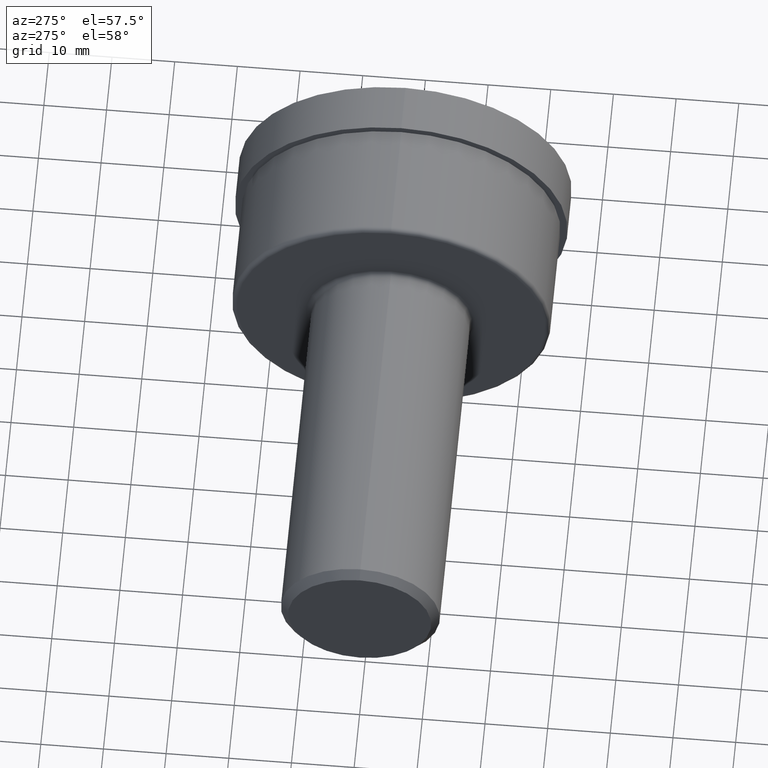
[diagram: clean part render]
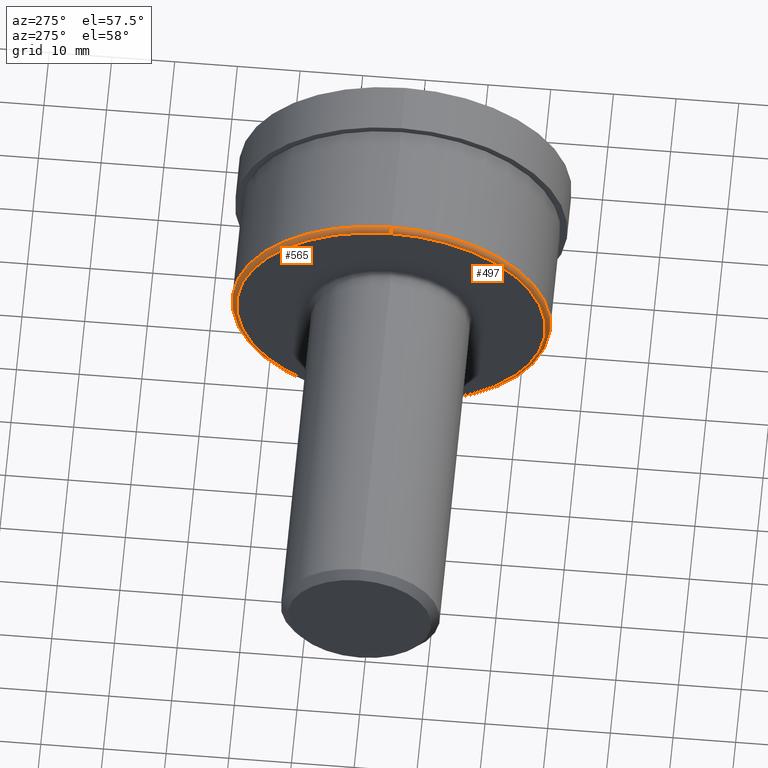
[diagram: same view with one multi-face feature highlighted, each face labeled with its STEP entity id]
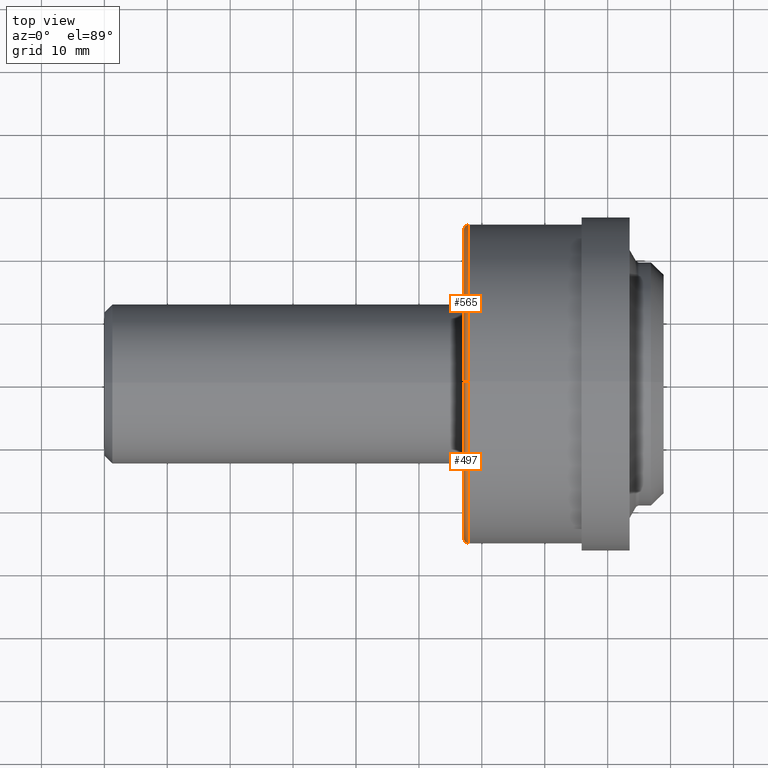
[diagram: same view with one multi-face feature highlighted, each face labeled with its STEP entity id]
A machine part, auxiliary view. The highlighted faces form ONE feature: a constant-radius fillet chain: 2 tangent blend faces with common blend radius 0.762 mm. The faces share edges in the B-rep.
A second angle (top view) of the same feature is appended — it is thin or edge-on in the first view.
Their STEP definitions:
[1] entity #497 (Torus):
#60 = CIRCLE ( 'NONE', #476, 0.9700000000000000844 ) ;
#82 = CARTESIAN_POINT ( 'NONE',  ( 2.279999999999999805, 0.000000000000000000, 0.000000000000000000 ) ) ;
#127 = CIRCLE ( 'NONE', #160, 1.000000000000000000 ) ;
#131 = DIRECTION ( 'NONE',  ( -0.000000000000000000, 1.000000000000000000, 1.224646799147353207E-16 ) ) ;
#160 = AXIS2_PLACEMENT_3D ( 'NONE', #220, #650, #541 ) ;
#169 = DIRECTION ( 'NONE',  ( -1.000000000000000000, -0.000000000000000000, -0.000000000000000000 ) ) ;
#220 = CARTESIAN_POINT ( 'NONE',  ( 2.279999999999999805, 0.000000000000000000, 0.000000000000000000 ) ) ;
#227 = DIRECTION ( 'NONE',  ( 0.000000000000000000, 0.000000000000000000, 1.000000000000000000 ) ) ;
#285 = AXIS2_PLACEMENT_3D ( 'NONE', #714, #131, #356 ) ;
#298 = AXIS2_PLACEMENT_3D ( 'NONE', #82, #529, #586 ) ;
#329 = CARTESIAN_POINT ( 'NONE',  ( 2.250000000000000000, 1.206277097160143073E-16, -0.9700000000000000844 ) ) ;
#337 = CIRCLE ( 'NONE', #704, 0.02999999999999995379 ) ;
#343 = CARTESIAN_POINT ( 'NONE',  ( 2.250000000000000000, 0.000000000000000000, 0.000000000000000000 ) ) ;
#356 = DIRECTION ( 'NONE',  ( 0.000000000000000000, -1.224646799147354933E-16, 1.000000000000000000 ) ) ;
#359 = ORIENTED_EDGE ( 'NONE', *, *, #537, .T. ) ;
#407 = VERTEX_POINT ( 'NONE', #459 ) ;
#415 = CARTESIAN_POINT ( 'NONE',  ( 2.279999999999999805, 0.000000000000000000, 1.000000000000000000 ) ) ;
#459 = CARTESIAN_POINT ( 'NONE',  ( 2.250000000000000000, 0.000000000000000000, 0.9700000000000000844 ) ) ;
#460 = ORIENTED_EDGE ( 'NONE', *, *, #701, .F. ) ;
#474 = VERTEX_POINT ( 'NONE', #415 ) ;
#476 = AXIS2_PLACEMENT_3D ( 'NONE', #343, #169, #227 ) ;
#478 = DIRECTION ( 'NONE',  ( 0.000000000000000000, 0.000000000000000000, -1.000000000000000000 ) ) ;
#482 = DIRECTION ( 'NONE',  ( 0.000000000000000000, -1.000000000000000000, 0.000000000000000000 ) ) ;
#483 = ORIENTED_EDGE ( 'NONE', *, *, #692, .F. ) ;
#497 = ADVANCED_FACE ( 'NONE', ( #683 ), #712, .T. ) ;
#521 = CARTESIAN_POINT ( 'NONE',  ( 2.279999999999999805, 0.000000000000000000, 0.9700000000000000844 ) ) ;
#529 = DIRECTION ( 'NONE',  ( -1.000000000000000000, -0.000000000000000000, -0.000000000000000000 ) ) ;
#537 = EDGE_CURVE ( 'NONE', #474, #407, #337, .T. ) ;
#541 = DIRECTION ( 'NONE',  ( 0.000000000000000000, 0.000000000000000000, 1.000000000000000000 ) ) ;
#555 = VERTEX_POINT ( 'NONE', #329 ) ;
#557 = CARTESIAN_POINT ( 'NONE',  ( 2.279999999999999805, 1.224646799147353207E-16, -1.000000000000000000 ) ) ;
#586 = DIRECTION ( 'NONE',  ( 0.000000000000000000, 0.000000000000000000, 1.000000000000000000 ) ) ;
#597 = CIRCLE ( 'NONE', #285, 0.02999999999999995379 ) ;
#617 = EDGE_CURVE ( 'NONE', #697, #474, #127, .T. ) ;
#638 = EDGE_LOOP ( 'NONE', ( #483, #645, #359, #460 ) ) ;
#645 = ORIENTED_EDGE ( 'NONE', *, *, #617, .T. ) ;
#650 = DIRECTION ( 'NONE',  ( -1.000000000000000000, -0.000000000000000000, -0.000000000000000000 ) ) ;
#683 = FACE_OUTER_BOUND ( 'NONE', #638, .T. ) ;
#692 = EDGE_CURVE ( 'NONE', #697, #555, #597, .T. ) ;
#697 = VERTEX_POINT ( 'NONE', #557 ) ;
#701 = EDGE_CURVE ( 'NONE', #555, #407, #60, .T. ) ;
#704 = AXIS2_PLACEMENT_3D ( 'NONE', #521, #482, #478 ) ;
#712 = TOROIDAL_SURFACE ( 'NONE', #298, 0.9700000000000000844, 0.02999999999999995379 ) ;
#714 = CARTESIAN_POINT ( 'NONE',  ( 2.279999999999999805, 1.187907395172932692E-16, -0.9700000000000000844 ) ) ;
[2] entity #565 (Torus):
#38 = CARTESIAN_POINT ( 'NONE',  ( 2.279999999999999805, 0.000000000000000000, 0.000000000000000000 ) ) ;
#41 = TOROIDAL_SURFACE ( 'NONE', #610, 0.9700000000000000844, 0.02999999999999995379 ) ;
#50 = DIRECTION ( 'NONE',  ( -1.000000000000000000, -0.000000000000000000, -0.000000000000000000 ) ) ;
#59 = ORIENTED_EDGE ( 'NONE', *, *, #504, .F. ) ;
#70 = ORIENTED_EDGE ( 'NONE', *, *, #537, .F. ) ;
#131 = DIRECTION ( 'NONE',  ( -0.000000000000000000, 1.000000000000000000, 1.224646799147353207E-16 ) ) ;
#157 = CARTESIAN_POINT ( 'NONE',  ( 2.279999999999999805, 0.000000000000000000, 0.000000000000000000 ) ) ;
#170 = CIRCLE ( 'NONE', #362, 0.9700000000000000844 ) ;
#241 = CIRCLE ( 'NONE', #452, 1.000000000000000000 ) ;
#243 = DIRECTION ( 'NONE',  ( 0.000000000000000000, 0.000000000000000000, 1.000000000000000000 ) ) ;
#280 = ORIENTED_EDGE ( 'NONE', *, *, #560, .T. ) ;
#285 = AXIS2_PLACEMENT_3D ( 'NONE', #714, #131, #356 ) ;
#311 = CARTESIAN_POINT ( 'NONE',  ( 2.250000000000000000, 0.000000000000000000, 0.000000000000000000 ) ) ;
#329 = CARTESIAN_POINT ( 'NONE',  ( 2.250000000000000000, 1.206277097160143073E-16, -0.9700000000000000844 ) ) ;
#337 = CIRCLE ( 'NONE', #704, 0.02999999999999995379 ) ;
#356 = DIRECTION ( 'NONE',  ( 0.000000000000000000, -1.224646799147354933E-16, 1.000000000000000000 ) ) ;
#362 = AXIS2_PLACEMENT_3D ( 'NONE', #311, #575, #243 ) ;
#405 = EDGE_LOOP ( 'NONE', ( #280, #480, #59, #70 ) ) ;
#407 = VERTEX_POINT ( 'NONE', #459 ) ;
#415 = CARTESIAN_POINT ( 'NONE',  ( 2.279999999999999805, 0.000000000000000000, 1.000000000000000000 ) ) ;
#452 = AXIS2_PLACEMENT_3D ( 'NONE', #38, #50, #717 ) ;
#459 = CARTESIAN_POINT ( 'NONE',  ( 2.250000000000000000, 0.000000000000000000, 0.9700000000000000844 ) ) ;
#474 = VERTEX_POINT ( 'NONE', #415 ) ;
#478 = DIRECTION ( 'NONE',  ( 0.000000000000000000, 0.000000000000000000, -1.000000000000000000 ) ) ;
#480 = ORIENTED_EDGE ( 'NONE', *, *, #692, .T. ) ;
#482 = DIRECTION ( 'NONE',  ( 0.000000000000000000, -1.000000000000000000, 0.000000000000000000 ) ) ;
#498 = DIRECTION ( 'NONE',  ( 0.000000000000000000, 0.000000000000000000, 1.000000000000000000 ) ) ;
#504 = EDGE_CURVE ( 'NONE', #407, #555, #170, .T. ) ;
#521 = CARTESIAN_POINT ( 'NONE',  ( 2.279999999999999805, 0.000000000000000000, 0.9700000000000000844 ) ) ;
#537 = EDGE_CURVE ( 'NONE', #474, #407, #337, .T. ) ;
#547 = DIRECTION ( 'NONE',  ( -1.000000000000000000, -0.000000000000000000, -0.000000000000000000 ) ) ;
#555 = VERTEX_POINT ( 'NONE', #329 ) ;
#557 = CARTESIAN_POINT ( 'NONE',  ( 2.279999999999999805, 1.224646799147353207E-16, -1.000000000000000000 ) ) ;
#560 = EDGE_CURVE ( 'NONE', #474, #697, #241, .T. ) ;
#565 = ADVANCED_FACE ( 'NONE', ( #656 ), #41, .T. ) ;
#575 = DIRECTION ( 'NONE',  ( -1.000000000000000000, -0.000000000000000000, -0.000000000000000000 ) ) ;
#597 = CIRCLE ( 'NONE', #285, 0.02999999999999995379 ) ;
#610 = AXIS2_PLACEMENT_3D ( 'NONE', #157, #547, #498 ) ;
#656 = FACE_OUTER_BOUND ( 'NONE', #405, .T. ) ;
#692 = EDGE_CURVE ( 'NONE', #697, #555, #597, .T. ) ;
#697 = VERTEX_POINT ( 'NONE', #557 ) ;
#704 = AXIS2_PLACEMENT_3D ( 'NONE', #521, #482, #478 ) ;
#714 = CARTESIAN_POINT ( 'NONE',  ( 2.279999999999999805, 1.187907395172932692E-16, -0.9700000000000000844 ) ) ;
#717 = DIRECTION ( 'NONE',  ( 0.000000000000000000, 0.000000000000000000, 1.000000000000000000 ) ) ;